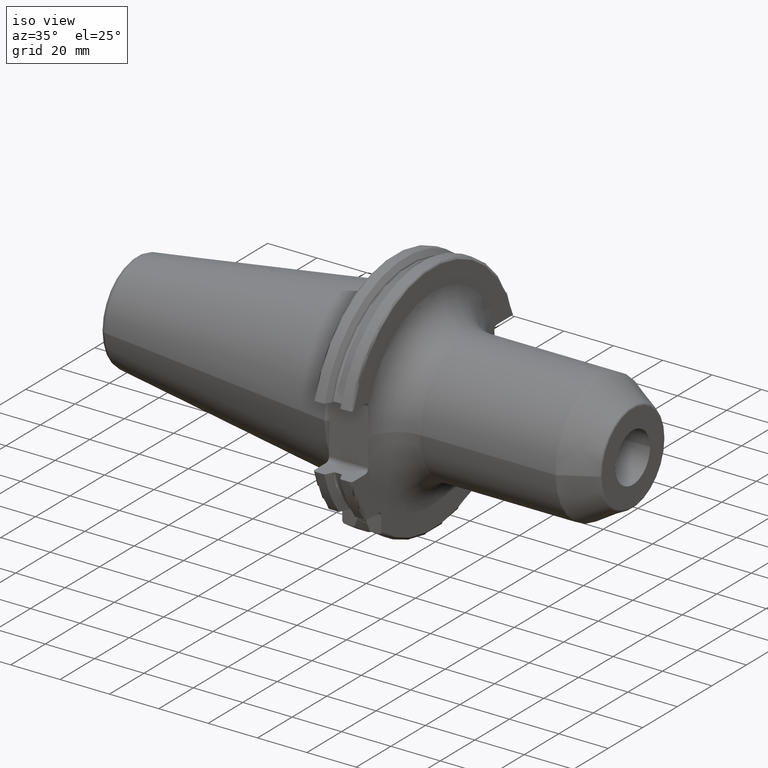
[diagram: clean part render]
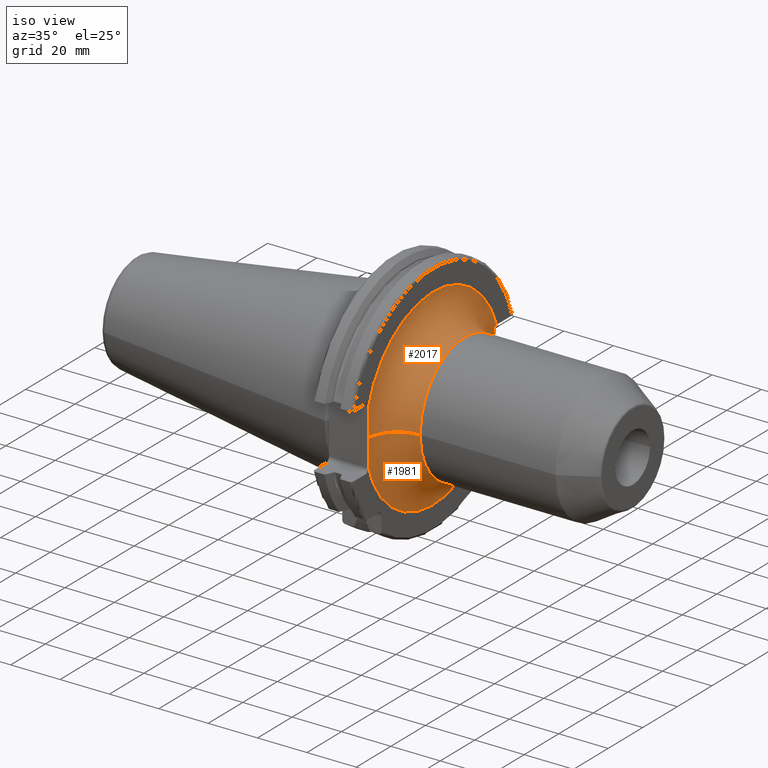
[diagram: same view with one multi-face feature highlighted, each face labeled with its STEP entity id]
A machine part, iso view. The highlighted faces form ONE feature: a constant-radius fillet chain: 2 tangent blend faces with common blend radius 13 mm. The faces share edges in the B-rep.
Their STEP definitions:
[1] entity #1981 (Torus):
#136=CARTESIAN_POINT('',(1.905E1,0.E0,0.E0));
#137=DIRECTION('',(1.E0,0.E0,0.E0));
#138=DIRECTION('',(0.E0,-9.615381096710E-1,-2.746715559541E-1));
#139=AXIS2_PLACEMENT_3D('',#136,#137,#138);
#178=CARTESIAN_POINT('',(1.913682842217E1,-3.75E1,2.227582378035E-3));
#179=CARTESIAN_POINT('',(1.913683665024E1,-3.75E1,-1.190213575254E0));
#180=CARTESIAN_POINT('',(1.912285912665E1,-3.749999808856E1,-3.573910659861E0));
#181=CARTESIAN_POINT('',(1.907401116160E1,-3.750000669003E1,-7.155405654851E0));
#182=CARTESIAN_POINT('',(1.905E1,-3.749998566422E1,-9.528078238761E0));
#183=CARTESIAN_POINT('',(1.905E1,-3.749998566422E1,-1.071221014751E1));
#185=CARTESIAN_POINT('',(3.205E1,-3.899999993119E1,2.316685669070E-3));
#186=DIRECTION('',(0.E0,-5.940219664281E-5,-9.999999982357E-1));
#187=DIRECTION('',(-9.933208906023E-1,1.153846100917E-1,-6.854099310313E-6));
#188=AXIS2_PLACEMENT_3D('',#185,#186,#187);
#190=CARTESIAN_POINT('',(1.920181073032E1,3.53E1,-1.115E1));
#191=CARTESIAN_POINT('',(1.926050471587E1,3.53E1,-9.886078744663E0));
#192=CARTESIAN_POINT('',(1.939283691878E1,3.53E1,-7.376467118205E0));
#193=CARTESIAN_POINT('',(1.954880631260E1,3.53E1,-3.673437940852E0));
#194=CARTESIAN_POINT('',(1.958763517615E1,3.53E1,-1.221724168445E0));
#195=CARTESIAN_POINT('',(1.958765670263E1,3.53E1,-2.098548838337E-3));
#197=CARTESIAN_POINT('',(1.905E1,3.681053522511E1,-1.288346656389E1));
#198=CARTESIAN_POINT('',(1.905E1,3.669224874844E1,-1.286712592972E1));
#199=CARTESIAN_POINT('',(1.905317647369E1,3.645812864089E1,-1.281031665199E1));
#200=CARTESIAN_POINT('',(1.906842891291E1,3.612636222032E1,-1.265139208873E1));
#201=CARTESIAN_POINT('',(1.909243356233E1,3.583945745779E1,-1.243025245954E1));
#202=CARTESIAN_POINT('',(1.912152757230E1,3.560799942917E1,-1.216287778955E1));
#203=CARTESIAN_POINT('',(1.915354754436E1,3.542946685041E1,-1.184367063864E1));
#204=CARTESIAN_POINT('',(1.918247528435E1,3.532251926075E1,-1.149721280111E1));
#205=CARTESIAN_POINT('',(1.919648302613E1,3.53E1,-1.126472723333E1));
#206=CARTESIAN_POINT('',(1.920181073032E1,3.53E1,-1.115E1));
#227=CARTESIAN_POINT('',(1.958765670263E1,3.53E1,-2.098548838337E-3));
#236=CARTESIAN_POINT('',(3.205E1,3.899999993108E1,-2.318510043940E-3));
#237=DIRECTION('',(0.E0,5.944897548563E-5,9.999999982329E-1));
#238=DIRECTION('',(-9.586417921057E-1,-2.846153793141E-1,1.692009273758E-5));
#239=AXIS2_PLACEMENT_3D('',#236,#237,#238);
#246=CARTESIAN_POINT('',(1.913682842217E1,-3.75E1,2.227582378035E-3));
#1205=CARTESIAN_POINT('',(3.205E1,0.E0,0.E0));
#1206=DIRECTION('',(1.E0,0.E0,0.E0));
#1207=DIRECTION('',(0.E0,-1.E0,0.E0));
#1208=AXIS2_PLACEMENT_3D('',#1205,#1206,#1207);
#1674=CARTESIAN_POINT('',(1.905E1,-3.749998627717E1,-1.071219068221E1));
#1675=CARTESIAN_POINT('',(1.905E1,3.681051892899E1,-1.288354361885E1));
#1676=VERTEX_POINT('',#1674);
#1677=VERTEX_POINT('',#1675);
#1678=CARTESIAN_POINT('',(3.205E1,-2.6E1,0.E0));
#1679=CARTESIAN_POINT('',(3.205E1,2.6E1,0.E0));
#1680=VERTEX_POINT('',#1678);
#1681=VERTEX_POINT('',#1679);
#1702=VERTEX_POINT('',#227);
#1704=VERTEX_POINT('',#190);
#1705=VERTEX_POINT('',#246);
#1963=CARTESIAN_POINT('',(3.205E1,0.E0,0.E0));
#1964=DIRECTION('',(1.E0,0.E0,0.E0));
#1965=DIRECTION('',(0.E0,-1.485959642860E-3,9.999988959614E-1));
#1966=AXIS2_PLACEMENT_3D('',#1963,#1964,#1965);
#1967=TOROIDAL_SURFACE('',#1966,3.9E1,1.3E1);
#1968=ORIENTED_EDGE('',*,*,#1917,.F.);
#1970=ORIENTED_EDGE('',*,*,#1969,.F.);
#1972=ORIENTED_EDGE('',*,*,#1971,.T.);
#1974=ORIENTED_EDGE('',*,*,#1973,.T.);
#1976=ORIENTED_EDGE('',*,*,#1975,.F.);
#1977=ORIENTED_EDGE('',*,*,#1879,.F.);
#1978=ORIENTED_EDGE('',*,*,#1902,.F.);
#1979=EDGE_LOOP('',(#1968,#1970,#1972,#1974,#1976,#1977,#1978));
#1980=FACE_OUTER_BOUND('',#1979,.F.);
#1981=ADVANCED_FACE('',(#1980),#1967,.F.);
#140=CIRCLE('',#139,3.9E1);
#184=B_SPLINE_CURVE_WITH_KNOTS('',3,(#178,#179,#180,#181,#182,#183),
.UNSPECIFIED.,.F.,.F.,(4,1,1,4),(0.E0,3.333333333333E-1,6.666666666667E-1,1.E0),
.UNSPECIFIED.);
#189=CIRCLE('',#188,1.3E1);
#196=B_SPLINE_CURVE_WITH_KNOTS('',3,(#190,#191,#192,#193,#194,#195),
.UNSPECIFIED.,.F.,.F.,(4,1,1,4),(0.E0,3.333333333333E-1,6.666666666667E-1,1.E0),
.UNSPECIFIED.);
#207=B_SPLINE_CURVE_WITH_KNOTS('',3,(#197,#198,#199,#200,#201,#202,#203,#204,
#205,#206),.UNSPECIFIED.,.F.,.F.,(4,1,1,1,1,1,1,4),(0.E0,1.428571428571E-1,
2.857142857143E-1,4.285714285714E-1,5.714285714286E-1,7.142857142857E-1,
8.571428571429E-1,1.E0),.UNSPECIFIED.);
#240=CIRCLE('',#239,1.3E1);
#1209=CIRCLE('',#1208,2.6E1);
#1879=EDGE_CURVE('',#1704,#1702,#196,.T.);
#1902=EDGE_CURVE('',#1677,#1704,#207,.T.);
#1917=EDGE_CURVE('',#1676,#1677,#140,.T.);
#1969=EDGE_CURVE('',#1705,#1676,#184,.T.);
#1971=EDGE_CURVE('',#1705,#1680,#189,.T.);
#1973=EDGE_CURVE('',#1680,#1681,#1209,.T.);
#1975=EDGE_CURVE('',#1702,#1681,#240,.T.);
[2] entity #2017 (Torus):
#161=CARTESIAN_POINT('',(1.905E1,0.E0,0.E0));
#162=DIRECTION('',(1.E0,0.E0,0.E0));
#163=DIRECTION('',(0.E0,9.438595268E-1,3.303470806121E-1));
#164=AXIS2_PLACEMENT_3D('',#161,#162,#163);
#185=CARTESIAN_POINT('',(3.205E1,-3.899999993119E1,2.316685669070E-3));
#186=DIRECTION('',(0.E0,-5.940219664281E-5,-9.999999982357E-1));
#187=DIRECTION('',(-9.933208906023E-1,1.153846100917E-1,-6.854099310313E-6));
#188=AXIS2_PLACEMENT_3D('',#185,#186,#187);
#216=CARTESIAN_POINT('',(1.920181073032E1,3.53E1,1.115E1));
#217=CARTESIAN_POINT('',(1.919648464593E1,3.53E1,1.126469235239E1));
#218=CARTESIAN_POINT('',(1.918248104413E1,3.532250534424E1,1.149713041654E1));
#219=CARTESIAN_POINT('',(1.915355513386E1,3.542943058581E1,1.184359102694E1));
#220=CARTESIAN_POINT('',(1.912153023110E1,3.560797704451E1,1.216285525581E1));
#221=CARTESIAN_POINT('',(1.909243051659E1,3.583948121963E1,1.243027657721E1));
#222=CARTESIAN_POINT('',(1.906842554495E1,3.612641523633E1,1.265143679225E1));
#223=CARTESIAN_POINT('',(1.905317654251E1,3.645815183161E1,1.281027286812E1));
#224=CARTESIAN_POINT('',(1.905E1,3.669223060294E1,1.286722375951E1));
#225=CARTESIAN_POINT('',(1.905E1,3.681051294302E1,1.288356382224E1));
#227=CARTESIAN_POINT('',(1.958765670263E1,3.53E1,-2.098548838337E-3));
#228=CARTESIAN_POINT('',(1.958766761726E1,3.53E1,6.162921605573E-1));
#229=CARTESIAN_POINT('',(1.957781488051E1,3.53E1,1.885528369381E0));
#230=CARTESIAN_POINT('',(1.953222918863E1,3.53E1,3.845614824928E0));
#231=CARTESIAN_POINT('',(1.945309081094E1,3.53E1,5.985331107193E0));
#232=CARTESIAN_POINT('',(1.933716233374E1,3.53E1,8.417060550433E0));
#233=CARTESIAN_POINT('',(1.924550816042E1,3.53E1,1.020901583974E1));
#234=CARTESIAN_POINT('',(1.920181073032E1,3.53E1,1.115E1));
#236=CARTESIAN_POINT('',(3.205E1,3.899999993108E1,-2.318510043940E-3));
#237=DIRECTION('',(0.E0,5.944897548563E-5,9.999999982329E-1));
#238=DIRECTION('',(-9.586417921057E-1,-2.846153793141E-1,1.692009273758E-5));
#239=AXIS2_PLACEMENT_3D('',#236,#237,#238);
#241=CARTESIAN_POINT('',(1.905E1,-3.750000675295E1,1.071203673146E1));
#242=CARTESIAN_POINT('',(1.905E1,-3.750000675295E1,9.527058737012E0));
#243=CARTESIAN_POINT('',(1.907403673172E1,-3.749999684862E1,7.153858261455E0));
#244=CARTESIAN_POINT('',(1.912283823041E1,-3.750000090039E1,3.575091456566E0));
#245=CARTESIAN_POINT('',(1.913682020270E1,-3.75E1,1.193423563693E0));
#246=CARTESIAN_POINT('',(1.913682842217E1,-3.75E1,2.227582378035E-3));
#1043=CARTESIAN_POINT('',(3.205E1,0.E0,0.E0));
#1044=DIRECTION('',(1.E0,0.E0,0.E0));
#1045=DIRECTION('',(0.E0,1.E0,0.E0));
#1046=AXIS2_PLACEMENT_3D('',#1043,#1044,#1045);
#1678=CARTESIAN_POINT('',(3.205E1,-2.6E1,0.E0));
#1679=CARTESIAN_POINT('',(3.205E1,2.6E1,0.E0));
#1680=VERTEX_POINT('',#1678);
#1681=VERTEX_POINT('',#1679);
#1682=CARTESIAN_POINT('',(1.905E1,3.681052154520E1,1.288353614387E1));
#1683=CARTESIAN_POINT('',(1.905E1,-3.750006518441E1,1.071191444911E1));
#1684=VERTEX_POINT('',#1682);
#1685=VERTEX_POINT('',#1683);
#1702=VERTEX_POINT('',#227);
#1703=VERTEX_POINT('',#234);
#1705=VERTEX_POINT('',#246);
#2001=CARTESIAN_POINT('',(3.205E1,0.E0,0.E0));
#2002=DIRECTION('',(1.E0,0.E0,0.E0));
#2003=DIRECTION('',(0.E0,1.485959642860E-3,-9.999988959614E-1));
#2004=AXIS2_PLACEMENT_3D('',#2001,#2002,#2003);
#2005=TOROIDAL_SURFACE('',#2004,3.9E1,1.3E1);
#2006=ORIENTED_EDGE('',*,*,#1946,.F.);
#2008=ORIENTED_EDGE('',*,*,#2007,.F.);
#2009=ORIENTED_EDGE('',*,*,#1881,.F.);
#2010=ORIENTED_EDGE('',*,*,#1975,.T.);
#2012=ORIENTED_EDGE('',*,*,#2011,.T.);
#2013=ORIENTED_EDGE('',*,*,#1971,.F.);
#2014=ORIENTED_EDGE('',*,*,#1988,.F.);
#2015=EDGE_LOOP('',(#2006,#2008,#2009,#2010,#2012,#2013,#2014));
#2016=FACE_OUTER_BOUND('',#2015,.F.);
#2017=ADVANCED_FACE('',(#2016),#2005,.F.);
#165=CIRCLE('',#164,3.9E1);
#189=CIRCLE('',#188,1.3E1);
#226=B_SPLINE_CURVE_WITH_KNOTS('',3,(#216,#217,#218,#219,#220,#221,#222,#223,
#224,#225),.UNSPECIFIED.,.F.,.F.,(4,1,1,1,1,1,1,4),(0.E0,1.428571428571E-1,
2.857142857143E-1,4.285714285714E-1,5.714285714286E-1,7.142857142857E-1,
8.571428571429E-1,1.E0),.UNSPECIFIED.);
#235=B_SPLINE_CURVE_WITH_KNOTS('',3,(#227,#228,#229,#230,#231,#232,#233,#234),
.UNSPECIFIED.,.F.,.F.,(4,1,1,1,1,4),(0.E0,2.E-1,4.E-1,6.E-1,8.E-1,1.E0),
.UNSPECIFIED.);
#240=CIRCLE('',#239,1.3E1);
#247=B_SPLINE_CURVE_WITH_KNOTS('',3,(#241,#242,#243,#244,#245,#246),
.UNSPECIFIED.,.F.,.F.,(4,1,1,4),(0.E0,3.333333333333E-1,6.666666666667E-1,1.E0),
.UNSPECIFIED.);
#1047=CIRCLE('',#1046,2.6E1);
#1881=EDGE_CURVE('',#1702,#1703,#235,.T.);
#1946=EDGE_CURVE('',#1684,#1685,#165,.T.);
#1971=EDGE_CURVE('',#1705,#1680,#189,.T.);
#1975=EDGE_CURVE('',#1702,#1681,#240,.T.);
#1988=EDGE_CURVE('',#1685,#1705,#247,.T.);
#2007=EDGE_CURVE('',#1703,#1684,#226,.T.);
#2011=EDGE_CURVE('',#1681,#1680,#1047,.T.);